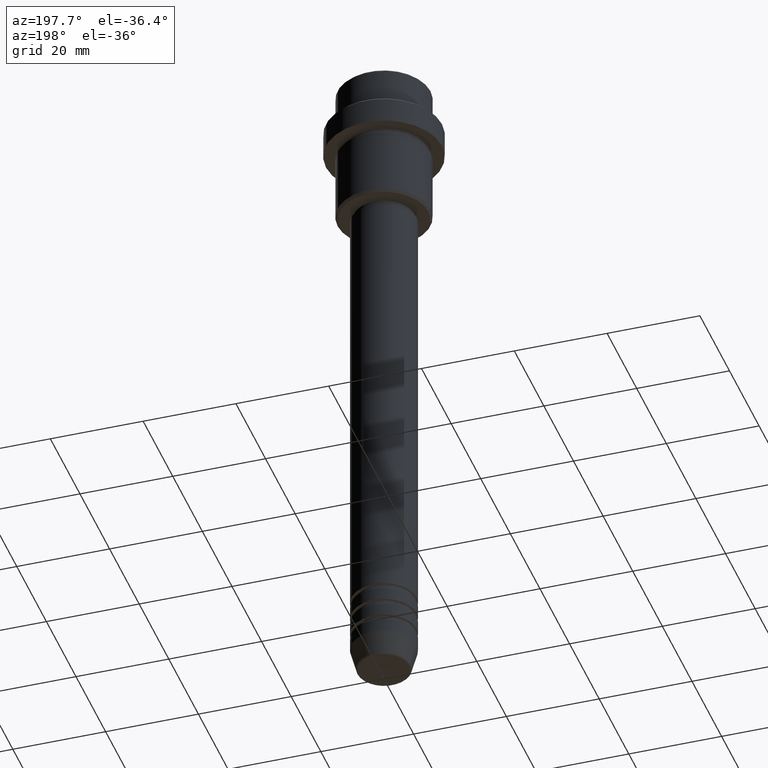
[diagram: clean part render]
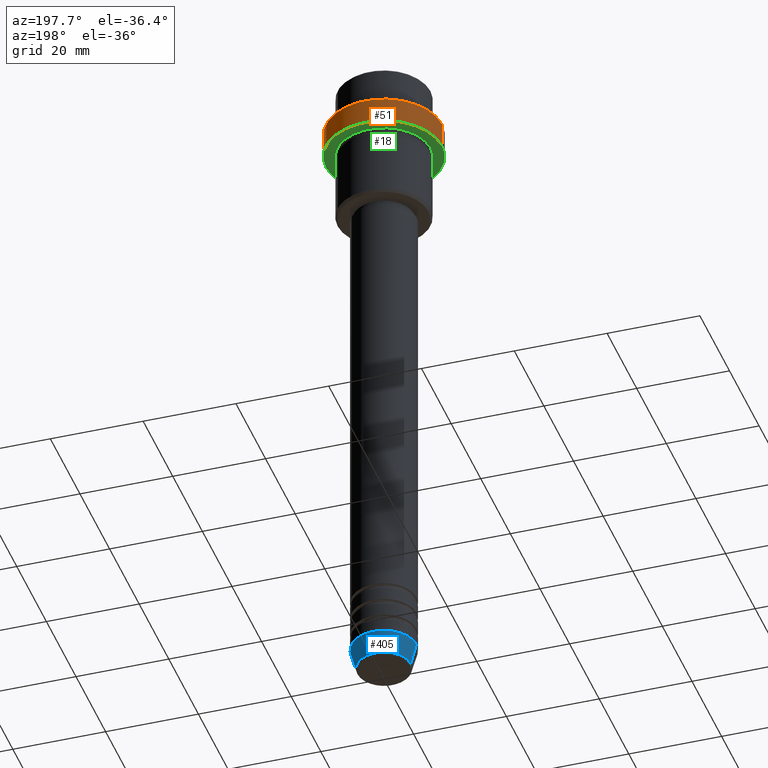
[diagram: same view with three faces highlighted in distinct colors, each labeled with its STEP entity id]
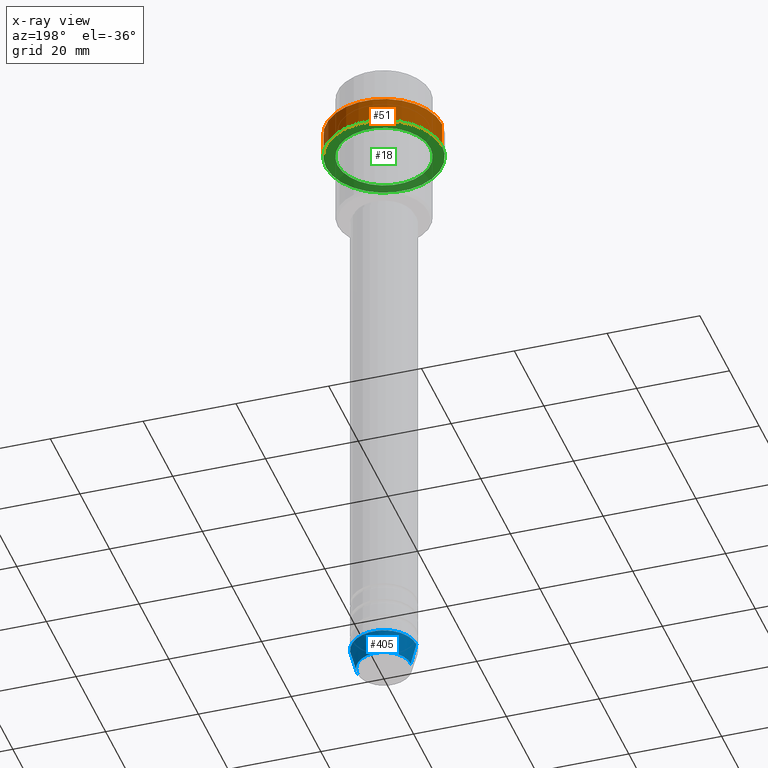
[diagram: x-ray of the same camera — body ghosted, the three highlighted faces saturated]
A machine part, auxiliary view with three faces highlighted in distinct colors.
The next image is the same camera in x-ray (body ghosted, the three faces saturated) — at least one of them is partly hidden behind the body in this view.
Their STEP definitions:

[orange] entity #51 — the highlighted cylindrical surface (partial cylindrical patch) has radius 12.5 mm, axis along (-0, -0, 1).
#15 = DIRECTION ( 'NONE',  ( 1.000000000000000000, 0.000000000000000000, 0.000000000000000000 ) ) ;
#51 = ADVANCED_FACE ( 'NONE', ( #897 ), #444, .T. ) ;
#79 = VERTEX_POINT ( 'NONE', #751 ) ;
#116 = CIRCLE ( 'NONE', #401, 12.50000000000000000 ) ;
#117 = CARTESIAN_POINT ( 'NONE',  ( 0.000000000000000000, 0.000000000000000000, 0.000000000000000000 ) ) ;
#175 = ORIENTED_EDGE ( 'NONE', *, *, #1206, .T. ) ;
#183 = AXIS2_PLACEMENT_3D ( 'NONE', #117, #356, #15 ) ;
#326 = VECTOR ( 'NONE', #422, 1000.000000000000000 ) ;
#356 = DIRECTION ( 'NONE',  ( -0.000000000000000000, -0.000000000000000000, 1.000000000000000000 ) ) ;
#383 = DIRECTION ( 'NONE',  ( 1.000000000000000000, 0.000000000000000000, 0.000000000000000000 ) ) ;
#401 = AXIS2_PLACEMENT_3D ( 'NONE', #1009, #922, #383 ) ;
#422 = DIRECTION ( 'NONE',  ( -0.000000000000000000, -0.000000000000000000, 1.000000000000000000 ) ) ;
#444 = CYLINDRICAL_SURFACE ( 'NONE', #183, 12.50000000000000000 ) ;
#496 = VERTEX_POINT ( 'NONE', #1277 ) ;
#557 = DIRECTION ( 'NONE',  ( 1.000000000000000000, 0.000000000000000000, 0.000000000000000000 ) ) ;
#603 = EDGE_LOOP ( 'NONE', ( #175, #1399, #1255, #950 ) ) ;
#711 = AXIS2_PLACEMENT_3D ( 'NONE', #995, #784, #557 ) ;
#747 = LINE ( 'NONE', #947, #963 ) ;
#751 = CARTESIAN_POINT ( 'NONE',  ( -12.50000000000000000, 1.530808498934191521E-15, -9.499999999999964473 ) ) ;
#784 = DIRECTION ( 'NONE',  ( -0.000000000000000000, -0.000000000000000000, 1.000000000000000000 ) ) ;
#853 = EDGE_CURVE ( 'NONE', #954, #496, #747, .T. ) ;
#897 = FACE_OUTER_BOUND ( 'NONE', #603, .T. ) ;
#922 = DIRECTION ( 'NONE',  ( 0.000000000000000000, 0.000000000000000000, -1.000000000000000000 ) ) ;
#947 = CARTESIAN_POINT ( 'NONE',  ( 12.50000000000000000, 0.000000000000000000, 0.000000000000000000 ) ) ;
#950 = ORIENTED_EDGE ( 'NONE', *, *, #853, .F. ) ;
#954 = VERTEX_POINT ( 'NONE', #1017 ) ;
#963 = VECTOR ( 'NONE', #1081, 1000.000000000000000 ) ;
#995 = CARTESIAN_POINT ( 'NONE',  ( 0.000000000000000000, 0.000000000000000000, -15.00000000000000178 ) ) ;
#1009 = CARTESIAN_POINT ( 'NONE',  ( 0.000000000000000000, 0.000000000000000000, -9.499999999999964473 ) ) ;
#1017 = CARTESIAN_POINT ( 'NONE',  ( 12.50000000000000000, 0.000000000000000000, -15.00000000000000178 ) ) ;
#1063 = CARTESIAN_POINT ( 'NONE',  ( -12.50000000000000000, 1.530808498934191521E-15, 0.000000000000000000 ) ) ;
#1081 = DIRECTION ( 'NONE',  ( -0.000000000000000000, -0.000000000000000000, 1.000000000000000000 ) ) ;
#1122 = EDGE_CURVE ( 'NONE', #79, #496, #116, .T. ) ;
#1144 = EDGE_CURVE ( 'NONE', #1368, #79, #1260, .T. ) ;
#1152 = CIRCLE ( 'NONE', #711, 12.50000000000000000 ) ;
#1206 = EDGE_CURVE ( 'NONE', #954, #1368, #1152, .T. ) ;
#1255 = ORIENTED_EDGE ( 'NONE', *, *, #1122, .T. ) ;
#1260 = LINE ( 'NONE', #1063, #326 ) ;
#1277 = CARTESIAN_POINT ( 'NONE',  ( 12.50000000000000000, 0.000000000000000000, -9.499999999999964473 ) ) ;
#1367 = CARTESIAN_POINT ( 'NONE',  ( -12.50000000000000000, 1.530808498934191521E-15, -15.00000000000000178 ) ) ;
#1368 = VERTEX_POINT ( 'NONE', #1367 ) ;
#1399 = ORIENTED_EDGE ( 'NONE', *, *, #1144, .T. ) ;

[blue] entity #405 — the highlighted conical surface has half-angle 15 deg.
#13 = CARTESIAN_POINT ( 'NONE',  ( 5.759553456999437770, 0.000000000000000000, -145.6294095225512137 ) ) ;
#47 = ORIENTED_EDGE ( 'NONE', *, *, #837, .F. ) ;
#102 = DIRECTION ( 'NONE',  ( 1.000000000000000000, 0.000000000000000000, 0.000000000000000000 ) ) ;
#112 = LINE ( 'NONE', #540, #1101 ) ;
#133 = EDGE_CURVE ( 'NONE', #568, #210, #112, .T. ) ;
#142 = AXIS2_PLACEMENT_3D ( 'NONE', #1386, #820, #1247 ) ;
#196 = CARTESIAN_POINT ( 'NONE',  ( 0.000000000000000000, 0.000000000000000000, -145.6294095225512137 ) ) ;
#210 = VERTEX_POINT ( 'NONE', #1024 ) ;
#215 = FACE_OUTER_BOUND ( 'NONE', #538, .T. ) ;
#255 = VECTOR ( 'NONE', #525, 1000.000000000000114 ) ;
#282 = CONICAL_SURFACE ( 'NONE', #825, 7.000000000000000000, 0.2617993877991514617 ) ;
#308 = DIRECTION ( 'NONE',  ( 1.000000000000000000, 0.000000000000000000, 0.000000000000000000 ) ) ;
#318 = LINE ( 'NONE', #515, #255 ) ;
#405 = ADVANCED_FACE ( 'NONE', ( #215 ), #282, .T. ) ;
#439 = ORIENTED_EDGE ( 'NONE', *, *, #511, .T. ) ;
#500 = CIRCLE ( 'NONE', #960, 5.759553456999437770 ) ;
#511 = EDGE_CURVE ( 'NONE', #611, #568, #500, .T. ) ;
#515 = CARTESIAN_POINT ( 'NONE',  ( 7.000000000000000000, 0.000000000000000000, -141.0000000000000000 ) ) ;
#525 = DIRECTION ( 'NONE',  ( 0.2588190451025227379, 0.000000000000000000, 0.9659258262890676461 ) ) ;
#538 = EDGE_LOOP ( 'NONE', ( #439, #641, #1135, #47 ) ) ;
#540 = CARTESIAN_POINT ( 'NONE',  ( -7.000000000000000000, 8.572527594031473190E-16, -141.0000000000000000 ) ) ;
#561 = CARTESIAN_POINT ( 'NONE',  ( 7.000000000000000000, 0.000000000000000000, -141.0000000000000000 ) ) ;
#568 = VERTEX_POINT ( 'NONE', #1051 ) ;
#611 = VERTEX_POINT ( 'NONE', #13 ) ;
#641 = ORIENTED_EDGE ( 'NONE', *, *, #133, .T. ) ;
#748 = EDGE_CURVE ( 'NONE', #900, #210, #1403, .T. ) ;
#769 = DIRECTION ( 'NONE',  ( -0.2588190451025227379, 3.169619151431788361E-17, 0.9659258262890676461 ) ) ;
#820 = DIRECTION ( 'NONE',  ( -0.000000000000000000, -0.000000000000000000, 1.000000000000000000 ) ) ;
#825 = AXIS2_PLACEMENT_3D ( 'NONE', #999, #1331, #102 ) ;
#837 = EDGE_CURVE ( 'NONE', #611, #900, #318, .T. ) ;
#900 = VERTEX_POINT ( 'NONE', #561 ) ;
#960 = AXIS2_PLACEMENT_3D ( 'NONE', #196, #1168, #308 ) ;
#999 = CARTESIAN_POINT ( 'NONE',  ( 0.000000000000000000, 0.000000000000000000, -141.0000000000000000 ) ) ;
#1024 = CARTESIAN_POINT ( 'NONE',  ( -7.000000000000000000, 8.572527594031473190E-16, -141.0000000000000000 ) ) ;
#1051 = CARTESIAN_POINT ( 'NONE',  ( -5.759553456999437770, 7.812973149831953745E-16, -145.6294095225512137 ) ) ;
#1101 = VECTOR ( 'NONE', #769, 1000.000000000000114 ) ;
#1135 = ORIENTED_EDGE ( 'NONE', *, *, #748, .F. ) ;
#1168 = DIRECTION ( 'NONE',  ( -0.000000000000000000, -0.000000000000000000, 1.000000000000000000 ) ) ;
#1247 = DIRECTION ( 'NONE',  ( 1.000000000000000000, 0.000000000000000000, 0.000000000000000000 ) ) ;
#1331 = DIRECTION ( 'NONE',  ( -0.000000000000000000, -0.000000000000000000, 1.000000000000000000 ) ) ;
#1386 = CARTESIAN_POINT ( 'NONE',  ( 0.000000000000000000, 0.000000000000000000, -141.0000000000000000 ) ) ;
#1403 = CIRCLE ( 'NONE', #142, 7.000000000000000000 ) ;

[green] entity #18 — the highlighted planar face has unit normal (0, 0, -1).
#18 = ADVANCED_FACE ( 'NONE', ( #839, #1283 ), #526, .T. ) ;
#75 = AXIS2_PLACEMENT_3D ( 'NONE', #673, #1213, #357 ) ;
#98 = CARTESIAN_POINT ( 'NONE',  ( 0.000000000000000000, 0.000000000000000000, -15.00000000000000000 ) ) ;
#103 = DIRECTION ( 'NONE',  ( -0.000000000000000000, -0.000000000000000000, 1.000000000000000000 ) ) ;
#110 = VERTEX_POINT ( 'NONE', #983 ) ;
#179 = CARTESIAN_POINT ( 'NONE',  ( 0.000000000000000000, 0.000000000000000000, -15.00000000000000000 ) ) ;
#198 = CARTESIAN_POINT ( 'NONE',  ( 0.000000000000000000, 12.50000000000000000, -15.00000000000000000 ) ) ;
#236 = ORIENTED_EDGE ( 'NONE', *, *, #570, .T. ) ;
#299 = DIRECTION ( 'NONE',  ( -1.000000000000000000, 0.000000000000000000, 0.000000000000000000 ) ) ;
#323 = AXIS2_PLACEMENT_3D ( 'NONE', #179, #1059, #299 ) ;
#325 = AXIS2_PLACEMENT_3D ( 'NONE', #98, #103, #330 ) ;
#330 = DIRECTION ( 'NONE',  ( -1.000000000000000000, 0.000000000000000000, 0.000000000000000000 ) ) ;
#344 = EDGE_LOOP ( 'NONE', ( #236, #906 ) ) ;
#357 = DIRECTION ( 'NONE',  ( 1.000000000000000000, 0.000000000000000000, 0.000000000000000000 ) ) ;
#436 = CIRCLE ( 'NONE', #325, 9.999999999999994671 ) ;
#494 = VERTEX_POINT ( 'NONE', #1045 ) ;
#526 = PLANE ( 'NONE',  #774 ) ;
#557 = DIRECTION ( 'NONE',  ( 1.000000000000000000, 0.000000000000000000, 0.000000000000000000 ) ) ;
#570 = EDGE_CURVE ( 'NONE', #110, #494, #889, .T. ) ;
#669 = ORIENTED_EDGE ( 'NONE', *, *, #1206, .F. ) ;
#673 = CARTESIAN_POINT ( 'NONE',  ( 0.000000000000000000, 0.000000000000000000, -15.00000000000000178 ) ) ;
#711 = AXIS2_PLACEMENT_3D ( 'NONE', #995, #784, #557 ) ;
#737 = DIRECTION ( 'NONE',  ( -1.000000000000000000, 0.000000000000000000, -0.000000000000000000 ) ) ;
#774 = AXIS2_PLACEMENT_3D ( 'NONE', #198, #848, #737 ) ;
#784 = DIRECTION ( 'NONE',  ( -0.000000000000000000, -0.000000000000000000, 1.000000000000000000 ) ) ;
#835 = ORIENTED_EDGE ( 'NONE', *, *, #1210, .F. ) ;
#839 = FACE_BOUND ( 'NONE', #344, .T. ) ;
#848 = DIRECTION ( 'NONE',  ( 0.000000000000000000, 0.000000000000000000, -1.000000000000000000 ) ) ;
#856 = EDGE_CURVE ( 'NONE', #494, #110, #436, .T. ) ;
#889 = CIRCLE ( 'NONE', #323, 9.999999999999994671 ) ;
#906 = ORIENTED_EDGE ( 'NONE', *, *, #856, .T. ) ;
#954 = VERTEX_POINT ( 'NONE', #1017 ) ;
#983 = CARTESIAN_POINT ( 'NONE',  ( -9.999999999999994671, 0.000000000000000000, -15.00000000000000000 ) ) ;
#995 = CARTESIAN_POINT ( 'NONE',  ( 0.000000000000000000, 0.000000000000000000, -15.00000000000000178 ) ) ;
#1017 = CARTESIAN_POINT ( 'NONE',  ( 12.50000000000000000, 0.000000000000000000, -15.00000000000000178 ) ) ;
#1045 = CARTESIAN_POINT ( 'NONE',  ( 9.999999999999994671, 1.224646799147352665E-15, -15.00000000000000000 ) ) ;
#1052 = EDGE_LOOP ( 'NONE', ( #669, #835 ) ) ;
#1059 = DIRECTION ( 'NONE',  ( -0.000000000000000000, -0.000000000000000000, 1.000000000000000000 ) ) ;
#1152 = CIRCLE ( 'NONE', #711, 12.50000000000000000 ) ;
#1206 = EDGE_CURVE ( 'NONE', #954, #1368, #1152, .T. ) ;
#1210 = EDGE_CURVE ( 'NONE', #1368, #954, #1383, .T. ) ;
#1213 = DIRECTION ( 'NONE',  ( -0.000000000000000000, -0.000000000000000000, 1.000000000000000000 ) ) ;
#1283 = FACE_OUTER_BOUND ( 'NONE', #1052, .T. ) ;
#1367 = CARTESIAN_POINT ( 'NONE',  ( -12.50000000000000000, 1.530808498934191521E-15, -15.00000000000000178 ) ) ;
#1368 = VERTEX_POINT ( 'NONE', #1367 ) ;
#1383 = CIRCLE ( 'NONE', #75, 12.50000000000000000 ) ;